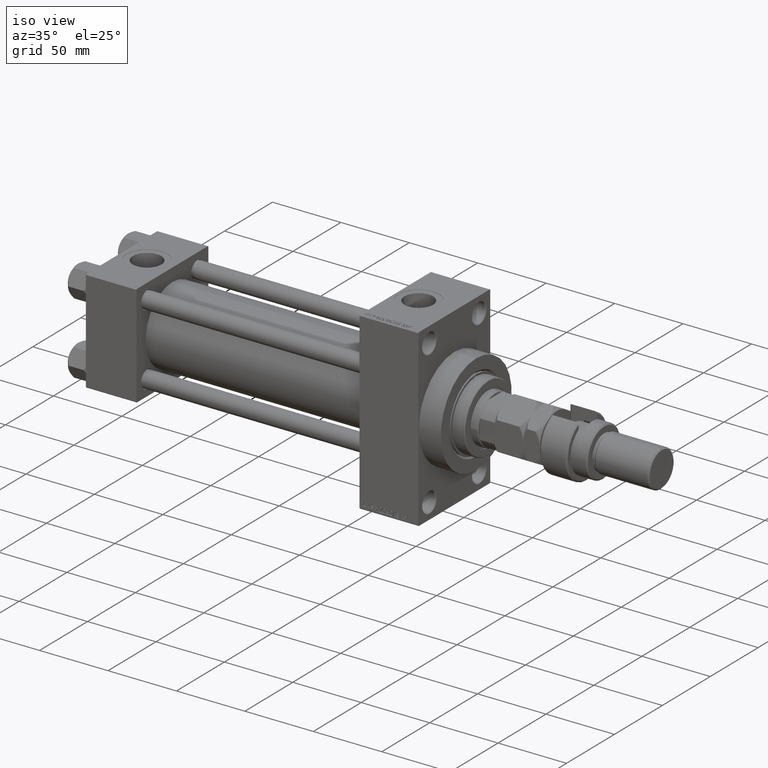
[diagram: clean part render]
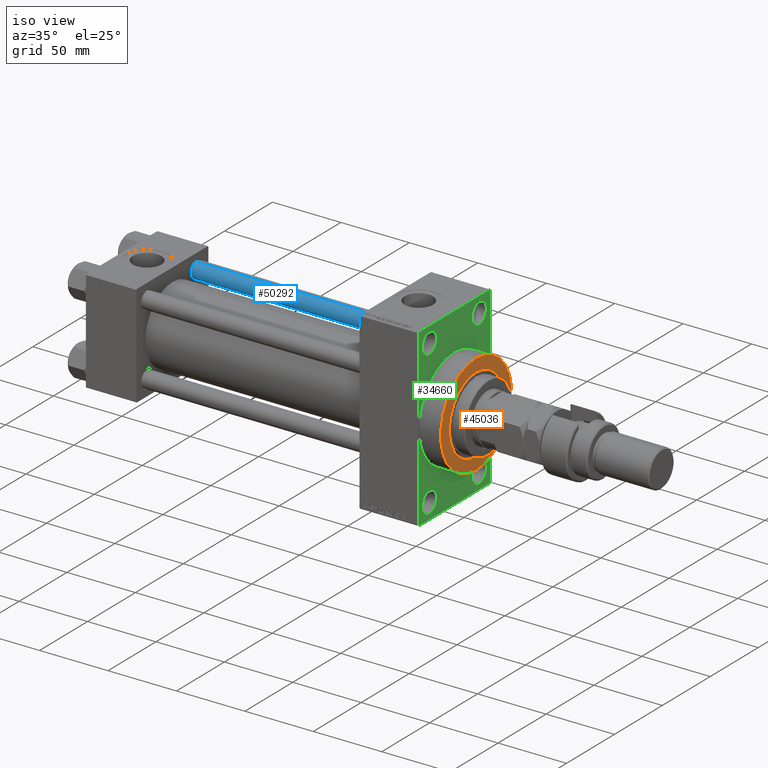
[diagram: same view with three faces highlighted in distinct colors, each labeled with its STEP entity id]
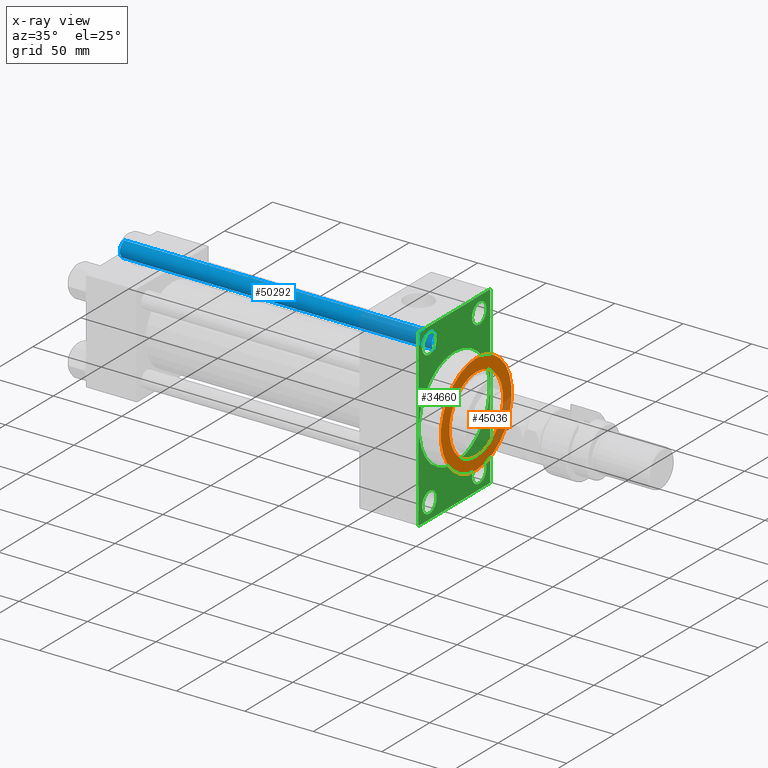
[diagram: x-ray of the same camera — body ghosted, the three highlighted faces saturated]
A machine part, iso view with three faces highlighted in distinct colors.
The next image is the same camera in x-ray (body ghosted, the three faces saturated) — at least one of them is partly hidden behind the body in this view.
Their STEP definitions:

[orange] entity #45036 — the highlighted planar face has unit normal (1, 0, 0).
#1213 = DIRECTION ( 'NONE',  ( 0.000000000000000000, 0.000000000000000000, -1.000000000000000000 ) ) ;
#2472 = CIRCLE ( 'NONE', #45695, 37.00000000000000000 ) ;
#2759 = DIRECTION ( 'NONE',  ( 0.000000000000000000, 0.000000000000000000, -1.000000000000000000 ) ) ;
#4429 = CIRCLE ( 'NONE', #17191, 28.00000000000005329 ) ;
#4653 = EDGE_LOOP ( 'NONE', ( #51048, #17654 ) ) ;
#5884 = ORIENTED_EDGE ( 'NONE', *, *, #31782, .T. ) ;
#6046 = AXIS2_PLACEMENT_3D ( 'NONE', #35778, #19590, #31539 ) ;
#8608 = CIRCLE ( 'NONE', #6046, 28.00000000000005329 ) ;
#8961 = DIRECTION ( 'NONE',  ( 1.000000000000000000, 0.000000000000000000, 0.000000000000000000 ) ) ;
#9052 = AXIS2_PLACEMENT_3D ( 'NONE', #12168, #8961, #20398 ) ;
#9170 = CARTESIAN_POINT ( 'NONE',  ( 259.0000000000000000, 0.000000000000000000, 0.000000000000000000 ) ) ;
#10458 = ORIENTED_EDGE ( 'NONE', *, *, #22367, .T. ) ;
#12168 = CARTESIAN_POINT ( 'NONE',  ( 259.0000000000000000, 0.000000000000000000, 0.000000000000000000 ) ) ;
#13254 = CARTESIAN_POINT ( 'NONE',  ( 259.0000000000000000, 0.000000000000000000, 0.000000000000000000 ) ) ;
#13515 = DIRECTION ( 'NONE',  ( 1.000000000000000000, 0.000000000000000000, 0.000000000000000000 ) ) ;
#16675 = FACE_OUTER_BOUND ( 'NONE', #28893, .T. ) ;
#17191 = AXIS2_PLACEMENT_3D ( 'NONE', #27181, #43366, #2759 ) ;
#17654 = ORIENTED_EDGE ( 'NONE', *, *, #35636, .T. ) ;
#19590 = DIRECTION ( 'NONE',  ( -1.000000000000000000, -0.000000000000000000, -0.000000000000000000 ) ) ;
#20398 = DIRECTION ( 'NONE',  ( 0.000000000000000000, 0.000000000000000000, -1.000000000000000000 ) ) ;
#22367 = EDGE_CURVE ( 'NONE', #24734, #34099, #52257, .T. ) ;
#22600 = AXIS2_PLACEMENT_3D ( 'NONE', #13254, #13515, #40626 ) ;
#24734 = VERTEX_POINT ( 'NONE', #26254 ) ;
#26254 = CARTESIAN_POINT ( 'NONE',  ( 259.0000000000000000, 0.000000000000000000, 37.00000000000000000 ) ) ;
#27181 = CARTESIAN_POINT ( 'NONE',  ( 259.0000000000000000, 0.000000000000000000, 0.000000000000000000 ) ) ;
#28893 = EDGE_LOOP ( 'NONE', ( #10458, #5884 ) ) ;
#29152 = FACE_BOUND ( 'NONE', #4653, .T. ) ;
#31539 = DIRECTION ( 'NONE',  ( 0.000000000000000000, 0.000000000000000000, -1.000000000000000000 ) ) ;
#31782 = EDGE_CURVE ( 'NONE', #34099, #24734, #2472, .T. ) ;
#34099 = VERTEX_POINT ( 'NONE', #38311 ) ;
#35636 = EDGE_CURVE ( 'NONE', #50780, #50145, #8608, .T. ) ;
#35778 = CARTESIAN_POINT ( 'NONE',  ( 259.0000000000000000, 0.000000000000000000, 0.000000000000000000 ) ) ;
#35907 = CARTESIAN_POINT ( 'NONE',  ( 259.0000000000000000, 3.429011037612595587E-15, 28.00000000000005329 ) ) ;
#37666 = EDGE_CURVE ( 'NONE', #50145, #50780, #4429, .T. ) ;
#38311 = CARTESIAN_POINT ( 'NONE',  ( 259.0000000000000000, 4.531193156845206793E-15, -37.00000000000000000 ) ) ;
#38991 = CARTESIAN_POINT ( 'NONE',  ( 259.0000000000000000, 0.000000000000000000, -28.00000000000005329 ) ) ;
#40626 = DIRECTION ( 'NONE',  ( 0.000000000000000000, 0.000000000000000000, -1.000000000000000000 ) ) ;
#43366 = DIRECTION ( 'NONE',  ( -1.000000000000000000, -0.000000000000000000, -0.000000000000000000 ) ) ;
#45036 = ADVANCED_FACE ( 'NONE', ( #29152, #16675 ), #49029, .T. ) ;
#45695 = AXIS2_PLACEMENT_3D ( 'NONE', #9170, #46561, #1213 ) ;
#46561 = DIRECTION ( 'NONE',  ( 1.000000000000000000, 0.000000000000000000, 0.000000000000000000 ) ) ;
#49029 = PLANE ( 'NONE',  #9052 ) ;
#50145 = VERTEX_POINT ( 'NONE', #38991 ) ;
#50780 = VERTEX_POINT ( 'NONE', #35907 ) ;
#51048 = ORIENTED_EDGE ( 'NONE', *, *, #37666, .T. ) ;
#52257 = CIRCLE ( 'NONE', #22600, 37.00000000000000000 ) ;

[blue] entity #50292 — the highlighted cylindrical surface (edge-blend (fillet) strip) has radius 6 mm, axis along (-1, -0, 0).
#2778 = VECTOR ( 'NONE', #6549, 1000.000000000000000 ) ;
#3672 = DIRECTION ( 'NONE',  ( -0.000000000000000000, -0.000000000000000000, -1.000000000000000000 ) ) ;
#6114 = DIRECTION ( 'NONE',  ( 0.000000000000000000, 0.000000000000000000, -1.000000000000000000 ) ) ;
#6549 = DIRECTION ( 'NONE',  ( -0.000000000000000000, -0.000000000000000000, -1.000000000000000000 ) ) ;
#9263 = CIRCLE ( 'NONE', #35575, 6.000000000000000888 ) ;
#9486 = VERTEX_POINT ( 'NONE', #47591 ) ;
#10022 = EDGE_CURVE ( 'NONE', #27786, #9486, #14513, .T. ) ;
#12796 = CIRCLE ( 'NONE', #42446, 6.000000000000000888 ) ;
#14513 = LINE ( 'NONE', #18234, #2778 ) ;
#18122 = CARTESIAN_POINT ( 'NONE',  ( -6.000000000000000888, 0.000000000000000000, 228.5000000000001137 ) ) ;
#18218 = ORIENTED_EDGE ( 'NONE', *, *, #28542, .T. ) ;
#18234 = CARTESIAN_POINT ( 'NONE',  ( 6.000000000000000888, 7.347880794884119736E-16, 229.0000000000000000 ) ) ;
#19429 = VECTOR ( 'NONE', #52183, 1000.000000000000000 ) ;
#21197 = AXIS2_PLACEMENT_3D ( 'NONE', #31279, #3672, #36055 ) ;
#24120 = ORIENTED_EDGE ( 'NONE', *, *, #34527, .T. ) ;
#25179 = CARTESIAN_POINT ( 'NONE',  ( 0.000000000000000000, 0.000000000000000000, 0.5000000000001392220 ) ) ;
#26015 = DIRECTION ( 'NONE',  ( 1.000000000000000000, 0.000000000000000000, 0.000000000000000000 ) ) ;
#26205 = DIRECTION ( 'NONE',  ( -0.000000000000000000, -0.000000000000000000, 1.000000000000000000 ) ) ;
#26707 = ORIENTED_EDGE ( 'NONE', *, *, #10022, .F. ) ;
#27496 = ORIENTED_EDGE ( 'NONE', *, *, #31555, .T. ) ;
#27786 = VERTEX_POINT ( 'NONE', #32795 ) ;
#28058 = LINE ( 'NONE', #29116, #19429 ) ;
#28542 = EDGE_CURVE ( 'NONE', #45609, #9486, #9263, .T. ) ;
#28950 = VERTEX_POINT ( 'NONE', #18122 ) ;
#29116 = CARTESIAN_POINT ( 'NONE',  ( -6.000000000000000888, 0.000000000000000000, 229.0000000000000000 ) ) ;
#30267 = CARTESIAN_POINT ( 'NONE',  ( 0.000000000000000000, 0.000000000000000000, 228.5000000000001137 ) ) ;
#31279 = CARTESIAN_POINT ( 'NONE',  ( 0.000000000000000000, 0.000000000000000000, 229.0000000000000000 ) ) ;
#31555 = EDGE_CURVE ( 'NONE', #28950, #45609, #28058, .T. ) ;
#32795 = CARTESIAN_POINT ( 'NONE',  ( 6.000000000000000888, 7.347880794884119736E-16, 228.5000000000001137 ) ) ;
#33847 = CARTESIAN_POINT ( 'NONE',  ( -6.000000000000000888, 0.000000000000000000, 0.5000000000001392220 ) ) ;
#34527 = EDGE_CURVE ( 'NONE', #27786, #28950, #12796, .T. ) ;
#35079 = EDGE_LOOP ( 'NONE', ( #26707, #24120, #27496, #18218 ) ) ;
#35575 = AXIS2_PLACEMENT_3D ( 'NONE', #25179, #26205, #37912 ) ;
#36055 = DIRECTION ( 'NONE',  ( -1.000000000000000000, 0.000000000000000000, 0.000000000000000000 ) ) ;
#37912 = DIRECTION ( 'NONE',  ( 1.000000000000000000, 0.000000000000000000, 0.000000000000000000 ) ) ;
#42446 = AXIS2_PLACEMENT_3D ( 'NONE', #30267, #6114, #26015 ) ;
#44002 = FACE_OUTER_BOUND ( 'NONE', #35079, .T. ) ;
#44273 = CYLINDRICAL_SURFACE ( 'NONE', #21197, 6.000000000000000888 ) ;
#45609 = VERTEX_POINT ( 'NONE', #33847 ) ;
#47591 = CARTESIAN_POINT ( 'NONE',  ( 6.000000000000000888, 7.347880794884119736E-16, 0.5000000000001392220 ) ) ;
#50292 = ADVANCED_FACE ( 'NONE', ( #44002 ), #44273, .T. ) ;
#52183 = DIRECTION ( 'NONE',  ( -0.000000000000000000, -0.000000000000000000, -1.000000000000000000 ) ) ;

[green] entity #34660 — the highlighted planar face has unit normal (-1, 0, 0).
#2 = FACE_OUTER_BOUND ( 'NONE', #31006, .T. ) ;
#161 = CARTESIAN_POINT ( 'NONE',  ( 243.0000000000000000, -37.49999999999999289, 63.50000000000000000 ) ) ;
#619 = DIRECTION ( 'NONE',  ( -1.000000000000000000, 0.000000000000000000, -0.000000000000000000 ) ) ;
#672 = CARTESIAN_POINT ( 'NONE',  ( 243.0000000000000000, -37.00000000000002132, -64.00000000000001421 ) ) ;
#678 = ORIENTED_EDGE ( 'NONE', *, *, #33469, .T. ) ;
#1934 = EDGE_CURVE ( 'NONE', #28354, #27177, #16014, .T. ) ;
#2105 = DIRECTION ( 'NONE',  ( 0.000000000000000000, 0.000000000000000000, -1.000000000000000000 ) ) ;
#2200 = ORIENTED_EDGE ( 'NONE', *, *, #6563, .T. ) ;
#2970 = AXIS2_PLACEMENT_3D ( 'NONE', #47167, #14553, #10821 ) ;
#3056 = AXIS2_PLACEMENT_3D ( 'NONE', #42454, #18045, #50922 ) ;
#3181 = DIRECTION ( 'NONE',  ( -1.000000000000000000, 0.000000000000000000, -0.000000000000000000 ) ) ;
#3390 = VECTOR ( 'NONE', #44074, 1000.000000000000114 ) ;
#3802 = EDGE_CURVE ( 'NONE', #42165, #28619, #27894, .T. ) ;
#4042 = CARTESIAN_POINT ( 'NONE',  ( 243.0000000000000000, 37.50000000000000000, 63.99999999999998579 ) ) ;
#4609 = DIRECTION ( 'NONE',  ( 0.000000000000000000, 0.000000000000000000, 1.000000000000000000 ) ) ;
#4828 = CARTESIAN_POINT ( 'NONE',  ( 243.0000000000000000, -25.99999999999999645, 44.99999999999996447 ) ) ;
#5088 = CARTESIAN_POINT ( 'NONE',  ( 243.0000000000000000, 26.00000000000000000, 44.99999999999995737 ) ) ;
#5292 = EDGE_CURVE ( 'NONE', #34857, #42700, #13670, .T. ) ;
#5575 = ORIENTED_EDGE ( 'NONE', *, *, #37596, .T. ) ;
#5962 = LINE ( 'NONE', #50520, #46750 ) ;
#6081 = CARTESIAN_POINT ( 'NONE',  ( 243.0000000000000000, 37.49999999999999289, -63.50000000000007105 ) ) ;
#6563 = EDGE_CURVE ( 'NONE', #17769, #27365, #20421, .T. ) ;
#7065 = CARTESIAN_POINT ( 'NONE',  ( 243.0000000000000000, 4.531193156845206793E-15, -37.00000000000000000 ) ) ;
#9236 = CARTESIAN_POINT ( 'NONE',  ( 243.0000000000000000, 37.00000000000000000, 63.99999999999998579 ) ) ;
#9282 = EDGE_CURVE ( 'NONE', #35208, #17110, #32013, .T. ) ;
#10059 = CARTESIAN_POINT ( 'NONE',  ( 243.0000000000000000, 26.00000000000000000, -44.99999999999995737 ) ) ;
#10780 = ORIENTED_EDGE ( 'NONE', *, *, #21650, .F. ) ;
#10821 = DIRECTION ( 'NONE',  ( 0.000000000000000000, 0.000000000000000000, 1.000000000000000000 ) ) ;
#11153 = FACE_BOUND ( 'NONE', #20729, .T. ) ;
#11664 = CARTESIAN_POINT ( 'NONE',  ( 243.0000000000000000, 0.000000000000000000, 0.000000000000000000 ) ) ;
#12610 = VECTOR ( 'NONE', #51455, 1000.000000000000000 ) ;
#12987 = DIRECTION ( 'NONE',  ( 0.000000000000000000, 0.000000000000000000, 1.000000000000000000 ) ) ;
#13551 = CIRCLE ( 'NONE', #38039, 7.500000000000034639 ) ;
#13670 = LINE ( 'NONE', #672, #47476 ) ;
#14408 = CIRCLE ( 'NONE', #19509, 7.500000000000034639 ) ;
#14553 = DIRECTION ( 'NONE',  ( -1.000000000000000000, 0.000000000000000000, -0.000000000000000000 ) ) ;
#14633 = DIRECTION ( 'NONE',  ( -1.000000000000000000, 0.000000000000000000, -0.000000000000000000 ) ) ;
#14940 = ORIENTED_EDGE ( 'NONE', *, *, #29452, .T. ) ;
#15398 = DIRECTION ( 'NONE',  ( -1.000000000000000000, 0.000000000000000000, -0.000000000000000000 ) ) ;
#15754 = CARTESIAN_POINT ( 'NONE',  ( 243.0000000000000000, -37.49999999999999289, 63.50000000000000000 ) ) ;
#16014 = CIRCLE ( 'NONE', #31272, 7.500000000000034639 ) ;
#16197 = PLANE ( 'NONE',  #45815 ) ;
#16203 = LINE ( 'NONE', #19651, #18654 ) ;
#16457 = FACE_BOUND ( 'NONE', #32004, .T. ) ;
#16606 = CIRCLE ( 'NONE', #43710, 7.500000000000034639 ) ;
#16706 = DIRECTION ( 'NONE',  ( -1.000000000000000000, 0.000000000000000000, -0.000000000000000000 ) ) ;
#16856 = CARTESIAN_POINT ( 'NONE',  ( 243.0000000000000000, 26.00000000000000000, 52.49999999999999289 ) ) ;
#16889 = ORIENTED_EDGE ( 'NONE', *, *, #20646, .T. ) ;
#17110 = VERTEX_POINT ( 'NONE', #15754 ) ;
#17509 = VERTEX_POINT ( 'NONE', #10059 ) ;
#17769 = VERTEX_POINT ( 'NONE', #50337 ) ;
#17783 = DIRECTION ( 'NONE',  ( 1.000000000000000000, 0.000000000000000000, 0.000000000000000000 ) ) ;
#18045 = DIRECTION ( 'NONE',  ( -1.000000000000000000, 0.000000000000000000, -0.000000000000000000 ) ) ;
#18285 = VERTEX_POINT ( 'NONE', #20480 ) ;
#18327 = CARTESIAN_POINT ( 'NONE',  ( 243.0000000000000000, -25.99999999999999645, -44.99999999999995737 ) ) ;
#18654 = VECTOR ( 'NONE', #52008, 1000.000000000000000 ) ;
#18882 = CARTESIAN_POINT ( 'NONE',  ( 243.0000000000000000, -25.99999999999999645, 52.50000000000000000 ) ) ;
#19121 = AXIS2_PLACEMENT_3D ( 'NONE', #29535, #40979, #4609 ) ;
#19509 = AXIS2_PLACEMENT_3D ( 'NONE', #34513, #3181, #26552 ) ;
#19651 = CARTESIAN_POINT ( 'NONE',  ( 243.0000000000000000, -37.49999999999999289, 63.99999999999997158 ) ) ;
#20421 = CIRCLE ( 'NONE', #50048, 7.500000000000034639 ) ;
#20480 = CARTESIAN_POINT ( 'NONE',  ( 243.0000000000000000, 37.00000000000004974, -64.00000000000000000 ) ) ;
#20646 = EDGE_CURVE ( 'NONE', #40702, #37255, #16606, .T. ) ;
#20729 = EDGE_LOOP ( 'NONE', ( #2200, #42826 ) ) ;
#21286 = EDGE_CURVE ( 'NONE', #27177, #28354, #42005, .T. ) ;
#21537 = EDGE_CURVE ( 'NONE', #27365, #17769, #42076, .T. ) ;
#21650 = EDGE_CURVE ( 'NONE', #22901, #38831, #44621, .T. ) ;
#21755 = DIRECTION ( 'NONE',  ( 0.000000000000000000, 0.000000000000000000, -1.000000000000000000 ) ) ;
#22850 = ORIENTED_EDGE ( 'NONE', *, *, #47676, .T. ) ;
#22901 = VERTEX_POINT ( 'NONE', #7065 ) ;
#23123 = CARTESIAN_POINT ( 'NONE',  ( 243.0000000000000000, 37.00000000000000000, 63.99999999999998579 ) ) ;
#23970 = CIRCLE ( 'NONE', #34959, 37.00000000000000000 ) ;
#24148 = CARTESIAN_POINT ( 'NONE',  ( 243.0000000000000000, 26.00000000000000000, -52.49999999999999289 ) ) ;
#24151 = LINE ( 'NONE', #27604, #12610 ) ;
#24705 = VECTOR ( 'NONE', #46181, 1000.000000000000000 ) ;
#24758 = ORIENTED_EDGE ( 'NONE', *, *, #3802, .T. ) ;
#24772 = ORIENTED_EDGE ( 'NONE', *, *, #33220, .T. ) ;
#25743 = CARTESIAN_POINT ( 'NONE',  ( 243.0000000000000000, 0.000000000000000000, 0.000000000000000000 ) ) ;
#25771 = ORIENTED_EDGE ( 'NONE', *, *, #30019, .F. ) ;
#26293 = ORIENTED_EDGE ( 'NONE', *, *, #5292, .T. ) ;
#26552 = DIRECTION ( 'NONE',  ( 0.000000000000000000, 0.000000000000000000, 1.000000000000000000 ) ) ;
#26579 = ORIENTED_EDGE ( 'NONE', *, *, #35329, .F. ) ;
#27177 = VERTEX_POINT ( 'NONE', #5088 ) ;
#27365 = VERTEX_POINT ( 'NONE', #18327 ) ;
#27604 = CARTESIAN_POINT ( 'NONE',  ( 243.0000000000000000, 37.49999999999999289, -64.00000000000000000 ) ) ;
#27894 = LINE ( 'NONE', #23123, #3390 ) ;
#28306 = DIRECTION ( 'NONE',  ( -0.000000000000000000, -0.7071067811865524577, -0.7071067811865426878 ) ) ;
#28354 = VERTEX_POINT ( 'NONE', #31618 ) ;
#28448 = CIRCLE ( 'NONE', #2970, 7.500000000000034639 ) ;
#28535 = AXIS2_PLACEMENT_3D ( 'NONE', #29739, #42712, #21755 ) ;
#28619 = VERTEX_POINT ( 'NONE', #9236 ) ;
#28814 = DIRECTION ( 'NONE',  ( -1.000000000000000000, 0.000000000000000000, -0.000000000000000000 ) ) ;
#29345 = DIRECTION ( 'NONE',  ( 0.000000000000000000, 0.7071067811865376918, -0.7071067811865573427 ) ) ;
#29452 = EDGE_CURVE ( 'NONE', #51293, #17509, #13551, .T. ) ;
#29535 = CARTESIAN_POINT ( 'NONE',  ( 243.0000000000000000, 26.00000000000000000, 52.49999999999999289 ) ) ;
#29664 = VERTEX_POINT ( 'NONE', #42145 ) ;
#29739 = CARTESIAN_POINT ( 'NONE',  ( 243.0000000000000000, 0.000000000000000000, 0.000000000000000000 ) ) ;
#30019 = EDGE_CURVE ( 'NONE', #18285, #42700, #24151, .T. ) ;
#31006 = EDGE_LOOP ( 'NONE', ( #678, #26293, #25771, #22850, #26579, #24758, #5575, #51843 ) ) ;
#31185 = CARTESIAN_POINT ( 'NONE',  ( 243.0000000000000000, 37.50000000000000000, 63.49999999999998579 ) ) ;
#31272 = AXIS2_PLACEMENT_3D ( 'NONE', #16856, #28814, #44989 ) ;
#31566 = ORIENTED_EDGE ( 'NONE', *, *, #1934, .T. ) ;
#31618 = CARTESIAN_POINT ( 'NONE',  ( 243.0000000000000000, 26.00000000000000000, 60.00000000000002842 ) ) ;
#31991 = EDGE_LOOP ( 'NONE', ( #14940, #32563 ) ) ;
#32004 = EDGE_LOOP ( 'NONE', ( #41731, #10780 ) ) ;
#32013 = LINE ( 'NONE', #161, #39200 ) ;
#32563 = ORIENTED_EDGE ( 'NONE', *, *, #41175, .T. ) ;
#32650 = DIRECTION ( 'NONE',  ( -0.000000000000000000, 0.000000000000000000, 1.000000000000000000 ) ) ;
#33220 = EDGE_CURVE ( 'NONE', #37255, #40702, #14408, .T. ) ;
#33469 = EDGE_CURVE ( 'NONE', #17110, #34857, #16203, .T. ) ;
#34454 = CARTESIAN_POINT ( 'NONE',  ( 243.0000000000000000, -37.49999999999999289, -63.50000000000002842 ) ) ;
#34513 = CARTESIAN_POINT ( 'NONE',  ( 243.0000000000000000, -25.99999999999999645, 52.50000000000000000 ) ) ;
#34660 = ADVANCED_FACE ( 'NONE', ( #35577, #11153, #47761, #36360, #16457, #2 ), #16197, .F. ) ;
#34857 = VERTEX_POINT ( 'NONE', #34454 ) ;
#34959 = AXIS2_PLACEMENT_3D ( 'NONE', #25743, #17783, #2105 ) ;
#35208 = VERTEX_POINT ( 'NONE', #37861 ) ;
#35329 = EDGE_CURVE ( 'NONE', #42165, #29664, #40410, .T. ) ;
#35577 = FACE_BOUND ( 'NONE', #36468, .T. ) ;
#35937 = EDGE_LOOP ( 'NONE', ( #40000, #31566 ) ) ;
#36360 = FACE_BOUND ( 'NONE', #35937, .T. ) ;
#36468 = EDGE_LOOP ( 'NONE', ( #16889, #24772 ) ) ;
#37255 = VERTEX_POINT ( 'NONE', #46342 ) ;
#37596 = EDGE_CURVE ( 'NONE', #28619, #35208, #5962, .T. ) ;
#37861 = CARTESIAN_POINT ( 'NONE',  ( 243.0000000000000000, -37.00000000000001421, 63.99999999999997158 ) ) ;
#38039 = AXIS2_PLACEMENT_3D ( 'NONE', #24148, #16706, #12987 ) ;
#38046 = CARTESIAN_POINT ( 'NONE',  ( 243.0000000000000000, -37.00000000000002132, -64.00000000000001421 ) ) ;
#38199 = EDGE_CURVE ( 'NONE', #38831, #22901, #23970, .T. ) ;
#38831 = VERTEX_POINT ( 'NONE', #47542 ) ;
#38847 = CARTESIAN_POINT ( 'NONE',  ( 243.0000000000000000, 26.00000000000000000, -60.00000000000002842 ) ) ;
#39200 = VECTOR ( 'NONE', #28306, 1000.000000000000000 ) ;
#40000 = ORIENTED_EDGE ( 'NONE', *, *, #21286, .T. ) ;
#40410 = LINE ( 'NONE', #4042, #24705 ) ;
#40702 = VERTEX_POINT ( 'NONE', #4828 ) ;
#40979 = DIRECTION ( 'NONE',  ( -1.000000000000000000, 0.000000000000000000, -0.000000000000000000 ) ) ;
#41175 = EDGE_CURVE ( 'NONE', #17509, #51293, #28448, .T. ) ;
#41731 = ORIENTED_EDGE ( 'NONE', *, *, #38199, .F. ) ;
#41920 = LINE ( 'NONE', #6081, #45610 ) ;
#42005 = CIRCLE ( 'NONE', #19121, 7.500000000000034639 ) ;
#42056 = DIRECTION ( 'NONE',  ( 0.000000000000000000, -1.000000000000000000, -1.850371707708594563E-16 ) ) ;
#42076 = CIRCLE ( 'NONE', #3056, 7.500000000000034639 ) ;
#42145 = CARTESIAN_POINT ( 'NONE',  ( 243.0000000000000000, 37.49999999999999289, -63.50000000000007105 ) ) ;
#42165 = VERTEX_POINT ( 'NONE', #31185 ) ;
#42454 = CARTESIAN_POINT ( 'NONE',  ( 243.0000000000000000, -25.99999999999999645, -52.49999999999999289 ) ) ;
#42700 = VERTEX_POINT ( 'NONE', #38046 ) ;
#42712 = DIRECTION ( 'NONE',  ( 1.000000000000000000, 0.000000000000000000, 0.000000000000000000 ) ) ;
#42826 = ORIENTED_EDGE ( 'NONE', *, *, #21537, .T. ) ;
#43710 = AXIS2_PLACEMENT_3D ( 'NONE', #18882, #14633, #47524 ) ;
#44074 = DIRECTION ( 'NONE',  ( 0.000000000000000000, -0.7071067811865474617, 0.7071067811865474617 ) ) ;
#44621 = CIRCLE ( 'NONE', #28535, 37.00000000000000000 ) ;
#44989 = DIRECTION ( 'NONE',  ( 0.000000000000000000, 0.000000000000000000, 1.000000000000000000 ) ) ;
#45610 = VECTOR ( 'NONE', #49863, 999.9999999999998863 ) ;
#45815 = AXIS2_PLACEMENT_3D ( 'NONE', #11664, #15398, #32650 ) ;
#46181 = DIRECTION ( 'NONE',  ( 0.000000000000000000, -5.421010862427522170E-17, -1.000000000000000000 ) ) ;
#46342 = CARTESIAN_POINT ( 'NONE',  ( 243.0000000000000000, -25.99999999999999645, 60.00000000000003553 ) ) ;
#46750 = VECTOR ( 'NONE', #42056, 1000.000000000000000 ) ;
#47167 = CARTESIAN_POINT ( 'NONE',  ( 243.0000000000000000, 26.00000000000000000, -52.49999999999999289 ) ) ;
#47476 = VECTOR ( 'NONE', #29345, 1000.000000000000114 ) ;
#47524 = DIRECTION ( 'NONE',  ( 0.000000000000000000, 0.000000000000000000, 1.000000000000000000 ) ) ;
#47542 = CARTESIAN_POINT ( 'NONE',  ( 243.0000000000000000, 0.000000000000000000, 37.00000000000000000 ) ) ;
#47676 = EDGE_CURVE ( 'NONE', #18285, #29664, #41920, .T. ) ;
#47761 = FACE_BOUND ( 'NONE', #31991, .T. ) ;
#48134 = CARTESIAN_POINT ( 'NONE',  ( 243.0000000000000000, -25.99999999999999645, -52.49999999999999289 ) ) ;
#48668 = DIRECTION ( 'NONE',  ( 0.000000000000000000, 0.000000000000000000, 1.000000000000000000 ) ) ;
#49863 = DIRECTION ( 'NONE',  ( -0.000000000000000000, 0.7071067811865574537, 0.7071067811865376918 ) ) ;
#50048 = AXIS2_PLACEMENT_3D ( 'NONE', #48134, #619, #48668 ) ;
#50337 = CARTESIAN_POINT ( 'NONE',  ( 243.0000000000000000, -25.99999999999999645, -60.00000000000002842 ) ) ;
#50520 = CARTESIAN_POINT ( 'NONE',  ( 243.0000000000000000, 37.50000000000000000, 63.99999999999998579 ) ) ;
#50922 = DIRECTION ( 'NONE',  ( 0.000000000000000000, 0.000000000000000000, 1.000000000000000000 ) ) ;
#51293 = VERTEX_POINT ( 'NONE', #38847 ) ;
#51455 = DIRECTION ( 'NONE',  ( 0.000000000000000000, -1.000000000000000000, -1.850371707708594563E-16 ) ) ;
#51843 = ORIENTED_EDGE ( 'NONE', *, *, #9282, .T. ) ;
#52008 = DIRECTION ( 'NONE',  ( 0.000000000000000000, 0.000000000000000000, -1.000000000000000000 ) ) ;